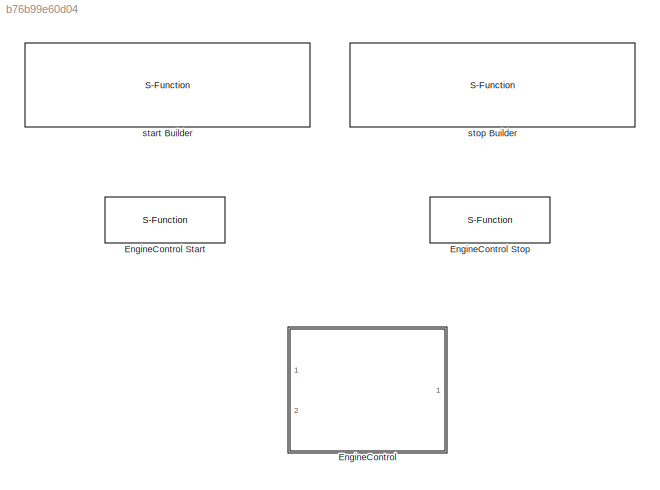
MODEL slx_b76b99e60d04
KIND library
CONFIG AbsTol = auto
CONFIG EnableMultiTasking = off
CONFIG FixedStep = auto
CONFIG MaxStep = auto
CONFIG MinStep = auto
CONFIG RelTol = 1e-3
CONFIG SampleTimeConstraint = Unconstrained
CONFIG Solver = VariableStepAuto
CONFIG SolverName = VariableStepAuto
CONFIG StartTime = 0.0
CONFIG StopTime = 10.0
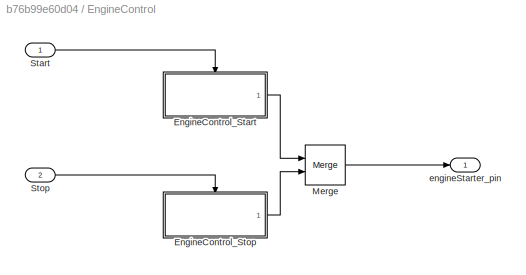
BLOCK [SubSystem] EngineControl
  Permissions = NoReadOrWrite
  Ports = [2, 1]
  RequestExecContextInheritance = off
BLOCK [S-Function] EngineControl Start
  EnableBusSupport = off
  FunctionName = EngineControl_start
  Ports = [0, 1]
  SFcnIsStateOwnerBlock = off
  SFunctionDeploymentMode = off
BLOCK [S-Function] EngineControl Stop
  EnableBusSupport = off
  FunctionName = EngineControl_stop
  Ports = [0, 1]
  SFcnIsStateOwnerBlock = off
  SFunctionDeploymentMode = off
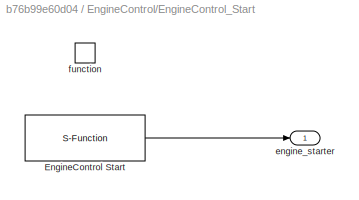
BLOCK [SubSystem] EngineControl/EngineControl_Start
  Ports = [0, 1, 0, 1]
  RequestExecContextInheritance = off
  TreatAsAtomicUnit = on
BLOCK [S-Function] EngineControl/EngineControl_Start/EngineControl Start
  EnableBusSupport = off
  FunctionName = EngineControl_start
  Ports = [0, 1]
  SFcnIsStateOwnerBlock = off
  SFunctionDeploymentMode = off
BLOCK [Outport] EngineControl/EngineControl_Start/engine_starter
  IconDisplay = Port number
BLOCK [TriggerPort] EngineControl/EngineControl_Start/function
  Ports = []
  StatesWhenEnabling = held
  TriggerType = function-call
  VariantControl = Variant
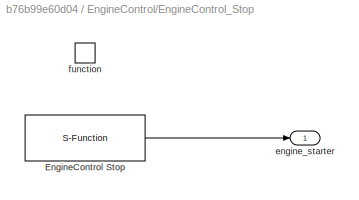
BLOCK [SubSystem] EngineControl/EngineControl_Stop
  Ports = [0, 1, 0, 1]
  RequestExecContextInheritance = off
  TreatAsAtomicUnit = on
BLOCK [S-Function] EngineControl/EngineControl_Stop/EngineControl Stop
  EnableBusSupport = off
  FunctionName = EngineControl_stop
  Ports = [0, 1]
  SFcnIsStateOwnerBlock = off
  SFunctionDeploymentMode = off
BLOCK [Outport] EngineControl/EngineControl_Stop/engine_starter
  IconDisplay = Port number
BLOCK [TriggerPort] EngineControl/EngineControl_Stop/function
  Ports = []
  StatesWhenEnabling = held
  TriggerType = function-call
  VariantControl = Variant
BLOCK [Merge] EngineControl/Merge
  Ports = [2, 1]
BLOCK [Inport] EngineControl/Start
  IconDisplay = Port number
BLOCK [Inport] EngineControl/Stop
  IconDisplay = Port number
  Port = 2
BLOCK [Outport] EngineControl/engineStarter_pin
  IconDisplay = Port number
BLOCK [S-Function] start Builder
  CopyFcn = set_param(gcbh,'LinkStatus','none')
  EnableBusSupport = off
  FunctionName = EngineControl_stop
  InitFcn = try, set_param(gcb,'FunctionName','EngineControl_stop'), end
  OpenFcn = sfunctionwizard(gcbh)
  Ports = [0, 1]
  PreSaveFcn = try, set_param(gcb,'FunctionName','EngineControl_stop'), end
  SFcnIsStateOwnerBlock = off
  SFunctionDeploymentMode = off
  SFunctionModules = EngineControl_stop_wrapper
BLOCK [S-Function] stop Builder
  CopyFcn = set_param(gcbh,'LinkStatus','none')
  EnableBusSupport = off
  FunctionName = EngineControl_start
  InitFcn = try, set_param(gcb,'FunctionName','EngineControl_start'), end
  OpenFcn = sfunctionwizard(gcbh)
  Ports = [0, 1]
  PreSaveFcn = try, set_param(gcb,'FunctionName','EngineControl_start'), end
  SFcnIsStateOwnerBlock = off
  SFunctionDeploymentMode = off
  SFunctionModules = EngineControl_start_wrapper
LINE EngineControl/EngineControl_Start/EngineControl Start:1 -> EngineControl/EngineControl_Start/engine_starter:1
LINE EngineControl/EngineControl_Start:1 -> EngineControl/Merge:1
LINE EngineControl/EngineControl_Stop/EngineControl Stop:1 -> EngineControl/EngineControl_Stop/engine_starter:1
LINE EngineControl/EngineControl_Stop:1 -> EngineControl/Merge:2
LINE EngineControl/Merge:1 -> EngineControl/engineStarter_pin:1
LINE EngineControl/Start:1 -> EngineControl/EngineControl_Start:trigger
LINE EngineControl/Stop:1 -> EngineControl/EngineControl_Stop:trigger
